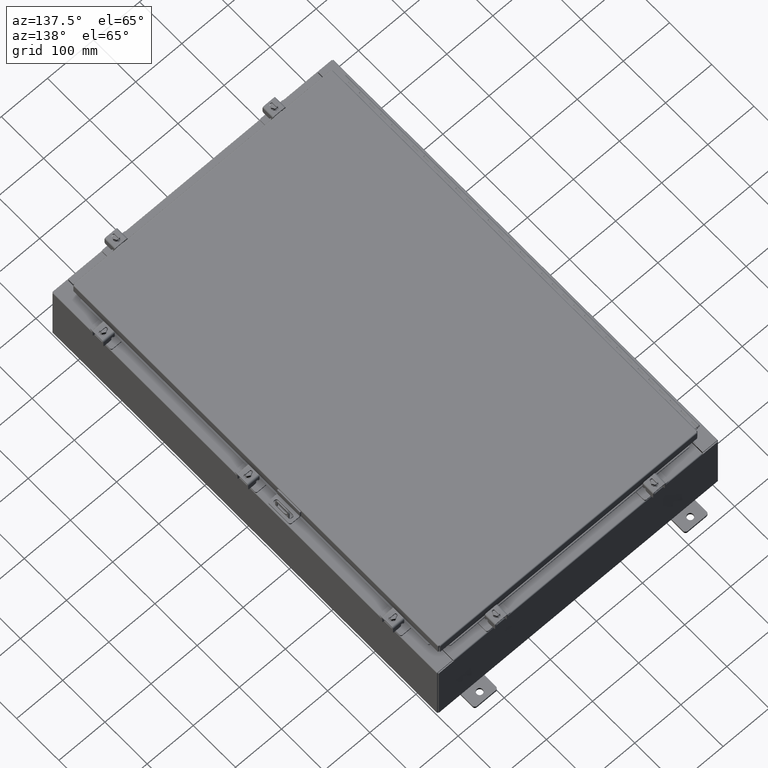
[diagram: clean part render]
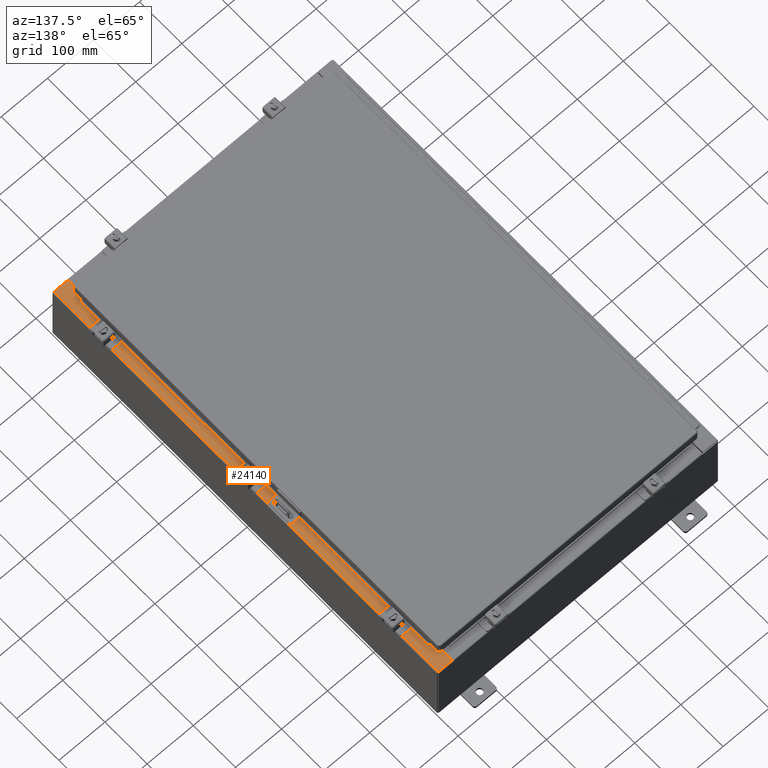
[diagram: same view with one face highlighted and labeled with its STEP entity id]
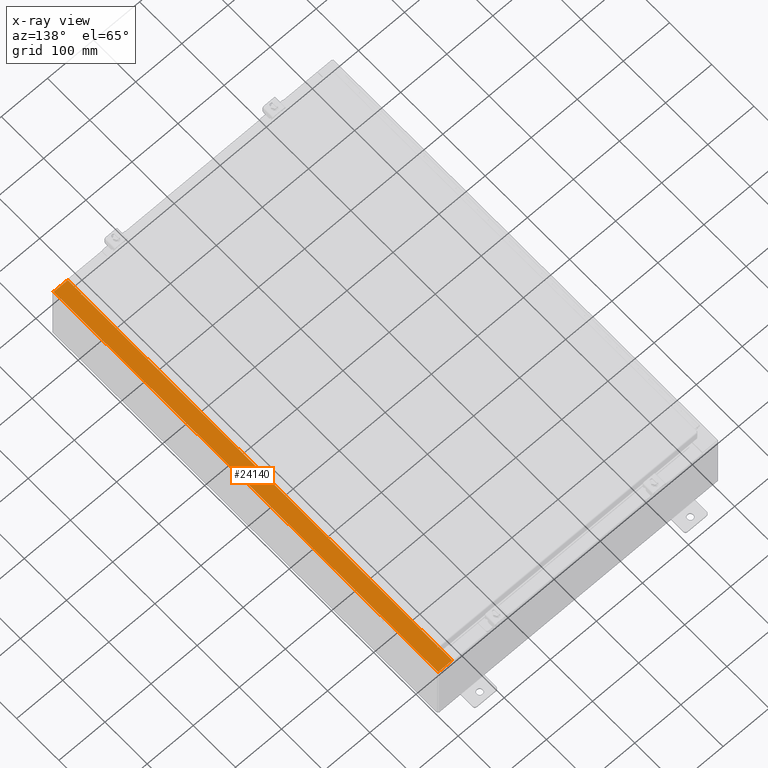
[diagram: x-ray of the same camera — body ghosted, the highlighted face saturated]
A machine part, auxiliary view. The second image highlights one B-rep face of the part: STEP entity #24140.
The next image is the same camera in x-ray: the body ghosted, the highlighted face saturated — about 0% of this face is hidden behind the body in this view.
In plain terms, the highlighted planar face has unit normal (-0, 0, -1).
Its self-contained STEP definition (entity closure, byte-faithful):
#346 = PLANE ( 'NONE',  #25048 ) ;
#991 = VERTEX_POINT ( 'NONE', #40581 ) ;
#1071 = VECTOR ( 'NONE', #11011, 39.37007874015748100 ) ;
#1909 = LINE ( 'NONE', #12988, #35505 ) ;
#2357 = DIRECTION ( 'NONE',  ( -1.000000000000000000, 0.0000000000000000000, 0.0000000000000000000 ) ) ;
#3658 = CARTESIAN_POINT ( 'NONE',  ( 4.252457061909019600E-014, 17.92529999999999600, 5.925300000000087100 ) ) ;
#5378 = VECTOR ( 'NONE', #19608, 39.37007874015748100 ) ;
#5730 = CARTESIAN_POINT ( 'NONE',  ( 11.91230000000002000, 17.92530000000000000, 5.925300000000001800 ) ) ;
#5903 = CARTESIAN_POINT ( 'NONE',  ( 10.71270000000002100, -16.59375000000000000, 5.925300000000011600 ) ) ;
#6702 = CARTESIAN_POINT ( 'NONE',  ( 11.91230000000002000, -17.92530000000000000, 5.925300000000001800 ) ) ;
#6867 = DIRECTION ( 'NONE',  ( -7.132762385546384700E-015, 0.0000000000000000000, -1.000000000000000000 ) ) ;
#6929 = CARTESIAN_POINT ( 'NONE',  ( 10.69970000000002100, 0.0000000000000000000, 5.925300000000009800 ) ) ;
#7068 = DIRECTION ( 'NONE',  ( -1.000000000000000000, 0.0000000000000000000, 7.132762385546384700E-015 ) ) ;
#7257 = CARTESIAN_POINT ( 'NONE',  ( 10.71270000000002100, 16.59375000000000000, 5.925300000000011600 ) ) ;
#8011 = LINE ( 'NONE', #9646, #32961 ) ;
#8510 = LINE ( 'NONE', #14328, #34467 ) ;
#8755 = ORIENTED_EDGE ( 'NONE', *, *, #15700, .F. ) ;
#9555 = LINE ( 'NONE', #6702, #42106 ) ;
#9646 = CARTESIAN_POINT ( 'NONE',  ( 10.69970000000002100, 0.0000000000000000000, 5.925300000000009800 ) ) ;
#9728 = LINE ( 'NONE', #30458, #1071 ) ;
#10940 = CARTESIAN_POINT ( 'NONE',  ( 10.75005000000002100, 16.59375000000000000, 5.925300000000009800 ) ) ;
#10980 = VECTOR ( 'NONE', #36229, 39.37007874015748100 ) ;
#11011 = DIRECTION ( 'NONE',  ( 1.000000000000000000, -1.783190596386596200E-015, -7.132762385546384700E-015 ) ) ;
#11649 = CARTESIAN_POINT ( 'NONE',  ( 10.69970000000002100, 16.63110000000000000, 5.925300000000009800 ) ) ;
#11682 = ORIENTED_EDGE ( 'NONE', *, *, #26206, .F. ) ;
#12130 = VECTOR ( 'NONE', #31927, 39.37007874015748100 ) ;
#12601 = EDGE_CURVE ( 'NONE', #29070, #35968, #9728, .T. ) ;
#12988 = CARTESIAN_POINT ( 'NONE',  ( 10.75005000000002100, 16.63110000000000000, 5.925300000000011600 ) ) ;
#13170 = CARTESIAN_POINT ( 'NONE',  ( 4.252457061909019600E-014, 0.0000000000000000000, 5.925300000000087100 ) ) ;
#13769 = EDGE_LOOP ( 'NONE', ( #39955, #20353, #23520, #8755, #24942, #20728, #26789, #16355, #30355, #11682, #20318, #16163 ) ) ;
#14059 = CIRCLE ( 'NONE', #14870, 0.01867499999999949400 ) ;
#14328 = CARTESIAN_POINT ( 'NONE',  ( 10.69970000000002100, -16.63110000000000400, 5.925300000000009800 ) ) ;
#14830 = LINE ( 'NONE', #3658, #31059 ) ;
#14870 = AXIS2_PLACEMENT_3D ( 'NONE', #38365, #18896, #41646 ) ;
#15636 = EDGE_CURVE ( 'NONE', #39325, #39835, #1909, .T. ) ;
#15700 = EDGE_CURVE ( 'NONE', #23089, #35968, #9555, .T. ) ;
#16163 = ORIENTED_EDGE ( 'NONE', *, *, #40015, .F. ) ;
#16229 = DIRECTION ( 'NONE',  ( 7.132762385546384700E-015, 0.0000000000000000000, 1.000000000000000000 ) ) ;
#16328 = EDGE_CURVE ( 'NONE', #23401, #26864, #21648, .T. ) ;
#16355 = ORIENTED_EDGE ( 'NONE', *, *, #17065, .F. ) ;
#16396 = EDGE_CURVE ( 'NONE', #16532, #39835, #19634, .T. ) ;
#16532 = VERTEX_POINT ( 'NONE', #36931 ) ;
#16575 = DIRECTION ( 'NONE',  ( -0.0000000000000000000, -1.000000000000000000, -0.0000000000000000000 ) ) ;
#16734 = CARTESIAN_POINT ( 'NONE',  ( 11.91230000000002000, -17.92530000000000000, 5.925300000000001800 ) ) ;
#17065 = EDGE_CURVE ( 'NONE', #26864, #39325, #14059, .T. ) ;
#18896 = DIRECTION ( 'NONE',  ( 7.132762385546384700E-015, 0.0000000000000000000, 1.000000000000000000 ) ) ;
#19608 = DIRECTION ( 'NONE',  ( 1.000000000000000000, 0.0000000000000000000, 0.0000000000000000000 ) ) ;
#19634 = LINE ( 'NONE', #6929, #10980 ) ;
#20318 = ORIENTED_EDGE ( 'NONE', *, *, #27625, .F. ) ;
#20353 = ORIENTED_EDGE ( 'NONE', *, *, #30730, .T. ) ;
#20605 = VECTOR ( 'NONE', #2357, 39.37007874015748100 ) ;
#20724 = LINE ( 'NONE', #5903, #12130 ) ;
#20728 = ORIENTED_EDGE ( 'NONE', *, *, #16396, .T. ) ;
#21378 = CIRCLE ( 'NONE', #26175, 0.01867499999999949400 ) ;
#21648 = LINE ( 'NONE', #35813, #5378 ) ;
#22052 = FACE_OUTER_BOUND ( 'NONE', #13769, .T. ) ;
#22609 = DIRECTION ( 'NONE',  ( -1.000000000000000000, 4.340572780400098900E-014, -2.170286390200049500E-014 ) ) ;
#22915 = DIRECTION ( 'NONE',  ( 0.0000000000000000000, -1.000000000000000000, 0.0000000000000000000 ) ) ;
#23089 = VERTEX_POINT ( 'NONE', #5730 ) ;
#23401 = VERTEX_POINT ( 'NONE', #7257 ) ;
#23462 = CARTESIAN_POINT ( 'NONE',  ( 10.71270000000002100, -16.59375000000000000, 5.925300000000011600 ) ) ;
#23520 = ORIENTED_EDGE ( 'NONE', *, *, #12601, .T. ) ;
#24140 = ADVANCED_FACE ( 'NONE', ( #22052 ), #346, .F. ) ;
#24942 = ORIENTED_EDGE ( 'NONE', *, *, #25776, .T. ) ;
#25048 = AXIS2_PLACEMENT_3D ( 'NONE', #13170, #6867, #29583 ) ;
#25224 = CARTESIAN_POINT ( 'NONE',  ( 10.75005000000002100, -16.59375000000000000, 5.925300000000011600 ) ) ;
#25776 = EDGE_CURVE ( 'NONE', #23089, #16532, #14830, .T. ) ;
#26175 = AXIS2_PLACEMENT_3D ( 'NONE', #35653, #16229, #38929 ) ;
#26206 = EDGE_CURVE ( 'NONE', #28121, #23401, #20724, .T. ) ;
#26789 = ORIENTED_EDGE ( 'NONE', *, *, #15636, .F. ) ;
#26864 = VERTEX_POINT ( 'NONE', #10940 ) ;
#27625 = EDGE_CURVE ( 'NONE', #991, #28121, #29249, .T. ) ;
#27925 = VERTEX_POINT ( 'NONE', #36321 ) ;
#28121 = VERTEX_POINT ( 'NONE', #23462 ) ;
#29070 = VERTEX_POINT ( 'NONE', #39084 ) ;
#29249 = LINE ( 'NONE', #25224, #20605 ) ;
#29583 = DIRECTION ( 'NONE',  ( -1.000000000000000000, 0.0000000000000000000, 7.132762385546384700E-015 ) ) ;
#30355 = ORIENTED_EDGE ( 'NONE', *, *, #16328, .F. ) ;
#30458 = CARTESIAN_POINT ( 'NONE',  ( 1.056034422168157600E-014, -17.92529999999998200, 5.925300000000087100 ) ) ;
#30730 = EDGE_CURVE ( 'NONE', #27925, #29070, #8011, .T. ) ;
#30909 = EDGE_CURVE ( 'NONE', #27925, #32511, #8510, .T. ) ;
#31059 = VECTOR ( 'NONE', #7068, 39.37007874015748100 ) ;
#31716 = CARTESIAN_POINT ( 'NONE',  ( 10.75005000000002100, 16.63110000000000000, 5.925300000000009800 ) ) ;
#31927 = DIRECTION ( 'NONE',  ( -0.0000000000000000000, 1.000000000000000000, -0.0000000000000000000 ) ) ;
#32511 = VERTEX_POINT ( 'NONE', #35330 ) ;
#32961 = VECTOR ( 'NONE', #22915, 39.37007874015748100 ) ;
#34467 = VECTOR ( 'NONE', #37060, 39.37007874015748100 ) ;
#35330 = CARTESIAN_POINT ( 'NONE',  ( 10.75005000000002100, -16.63110000000000000, 5.925300000000009800 ) ) ;
#35505 = VECTOR ( 'NONE', #22609, 39.37007874015748100 ) ;
#35653 = CARTESIAN_POINT ( 'NONE',  ( 10.75005000000002100, -16.61242500000000200, 5.925300000000011600 ) ) ;
#35813 = CARTESIAN_POINT ( 'NONE',  ( 10.71270000000002100, 16.59375000000000000, 5.925300000000011600 ) ) ;
#35968 = VERTEX_POINT ( 'NONE', #16734 ) ;
#36229 = DIRECTION ( 'NONE',  ( 0.0000000000000000000, -1.000000000000000000, 0.0000000000000000000 ) ) ;
#36321 = CARTESIAN_POINT ( 'NONE',  ( 10.69970000000002100, -16.63110000000000400, 5.925300000000009800 ) ) ;
#36931 = CARTESIAN_POINT ( 'NONE',  ( 10.69970000000002100, 17.92530000000000000, 5.925300000000009800 ) ) ;
#37060 = DIRECTION ( 'NONE',  ( 1.000000000000000000, 4.340572780400098900E-014, 2.170286390200049500E-014 ) ) ;
#38365 = CARTESIAN_POINT ( 'NONE',  ( 10.75005000000002100, 16.61242500000000200, 5.925300000000011600 ) ) ;
#38929 = DIRECTION ( 'NONE',  ( 1.000000000000000000, 0.0000000000000000000, 0.0000000000000000000 ) ) ;
#39084 = CARTESIAN_POINT ( 'NONE',  ( 10.69970000000002100, -17.92530000000000000, 5.925300000000009800 ) ) ;
#39325 = VERTEX_POINT ( 'NONE', #31716 ) ;
#39835 = VERTEX_POINT ( 'NONE', #11649 ) ;
#39955 = ORIENTED_EDGE ( 'NONE', *, *, #30909, .F. ) ;
#40015 = EDGE_CURVE ( 'NONE', #32511, #991, #21378, .T. ) ;
#40581 = CARTESIAN_POINT ( 'NONE',  ( 10.75005000000002100, -16.59375000000000000, 5.925300000000009800 ) ) ;
#41646 = DIRECTION ( 'NONE',  ( 1.000000000000000000, 0.0000000000000000000, 0.0000000000000000000 ) ) ;
#42106 = VECTOR ( 'NONE', #16575, 39.37007874015748100 ) ;